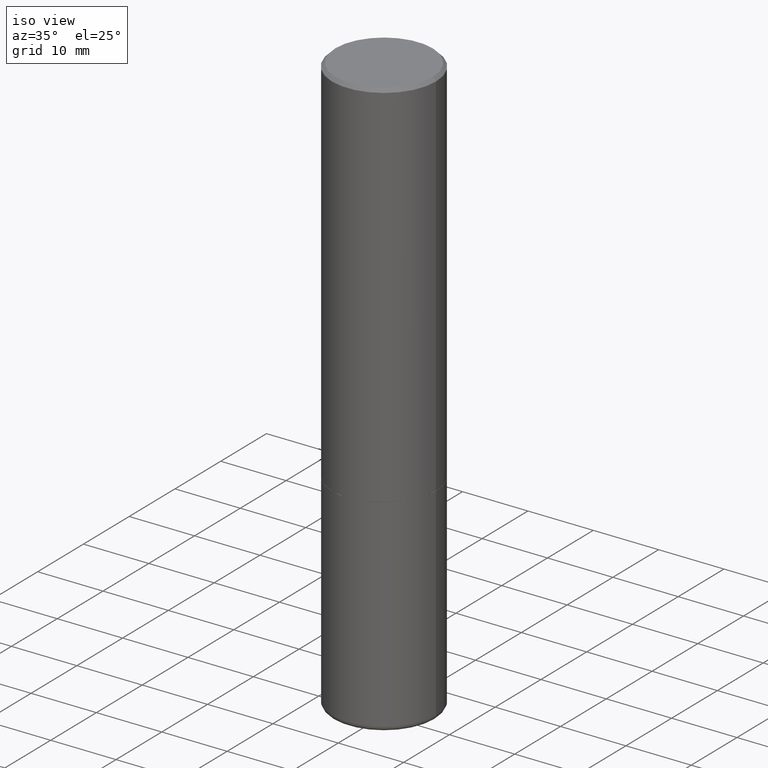
[diagram: clean part render]
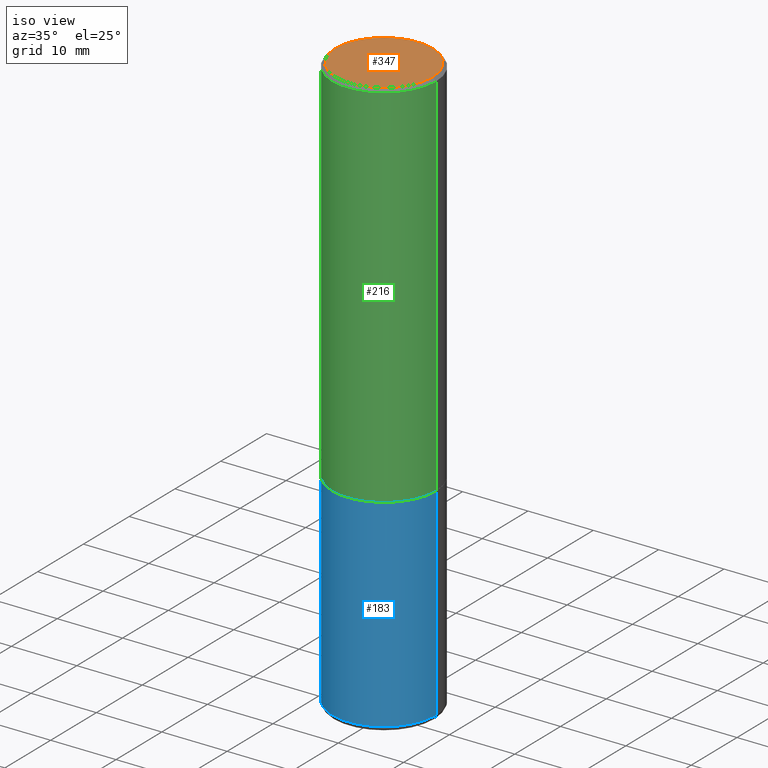
[diagram: same view with three faces highlighted in distinct colors, each labeled with its STEP entity id]
A machine part, iso view with three faces highlighted in distinct colors.
Their STEP definitions:

[orange] entity #347 — the highlighted planar face has unit normal (0, -0, -1).
#3 = EDGE_CURVE ( 'NONE', #324, #387, #235, .T. ) ;
#14 = DIRECTION ( 'NONE',  ( 1.000000000000000000, -6.982962677686266711E-15, 4.876067333457692840E-29 ) ) ;
#19 = DIRECTION ( 'NONE',  ( -2.445468806185136597E-29, 3.491481338843145583E-15, 1.000000000000000000 ) ) ;
#36 = DIRECTION ( 'NONE',  ( -1.000000000000000000, 6.982962677686265922E-15, -4.876176775795935793E-29 ) ) ;
#71 = CARTESIAN_POINT ( 'NONE',  ( 0.2924999999999998157, -2.110215457714318748E-15, 4.268512490114932791E-18 ) ) ;
#114 = EDGE_LOOP ( 'NONE', ( #202, #168 ) ) ;
#120 = CARTESIAN_POINT ( 'NONE',  ( -1.043851414335219820E-46, 1.490343170380447200E-32, 4.268512490100411279E-18 ) ) ;
#168 = ORIENTED_EDGE ( 'NONE', *, *, #3, .T. ) ;
#193 = AXIS2_PLACEMENT_3D ( 'NONE', #332, #19, #300 ) ;
#202 = ORIENTED_EDGE ( 'NONE', *, *, #411, .T. ) ;
#235 = CIRCLE ( 'NONE', #193, 0.2924999999999998157 ) ;
#259 = DIRECTION ( 'NONE',  ( -2.445468806185136597E-29, 3.491481338843145583E-15, 1.000000000000000000 ) ) ;
#270 = AXIS2_PLACEMENT_3D ( 'NONE', #412, #353, #36 ) ;
#292 = PLANE ( 'NONE',  #270 ) ;
#300 = DIRECTION ( 'NONE',  ( 1.000000000000000000, -6.982962677686266711E-15, 4.876067333457692840E-29 ) ) ;
#324 = VERTEX_POINT ( 'NONE', #71 ) ;
#329 = CARTESIAN_POINT ( 'NONE',  ( -0.2924999999999998157, 2.077431396611662611E-15, 4.268512490086005323E-18 ) ) ;
#331 = FACE_OUTER_BOUND ( 'NONE', #114, .T. ) ;
#332 = CARTESIAN_POINT ( 'NONE',  ( -1.043851414335219820E-46, 1.490343170380447200E-32, 4.268512490100411279E-18 ) ) ;
#347 = ADVANCED_FACE ( 'NONE', ( #331 ), #292, .F. ) ;
#353 = DIRECTION ( 'NONE',  ( 2.438088387897960049E-29, -3.491481338843145188E-15, -1.000000000000000000 ) ) ;
#387 = VERTEX_POINT ( 'NONE', #329 ) ;
#396 = CIRCLE ( 'NONE', #401, 0.2924999999999998157 ) ;
#401 = AXIS2_PLACEMENT_3D ( 'NONE', #120, #259, #14 ) ;
#411 = EDGE_CURVE ( 'NONE', #387, #324, #396, .T. ) ;
#412 = CARTESIAN_POINT ( 'NONE',  ( 2.042516583223231356E-15, 0.2924999999999998157, -1.019124035366569212E-15 ) ) ;

[blue] entity #183 — the highlighted cylindrical surface (partial cylindrical patch) has radius 7.9375 mm, axis along (-0, 0, 1).
#23 = DIRECTION ( 'NONE',  ( 1.000000000000000000, -6.982962677686265133E-15, 0.000000000000000000 ) ) ;
#34 = ORIENTED_EDGE ( 'NONE', *, *, #105, .T. ) ;
#38 = DIRECTION ( 'NONE',  ( -2.445468806185136597E-29, 3.491481338843145583E-15, 1.000000000000000000 ) ) ;
#57 = DIRECTION ( 'NONE',  ( 1.000000000000000000, -6.982962677686269077E-15, 0.000000000000000000 ) ) ;
#58 = LINE ( 'NONE', #165, #60 ) ;
#60 = VECTOR ( 'NONE', #128, 39.37007874015748143 ) ;
#61 = VERTEX_POINT ( 'NONE', #132 ) ;
#77 = VERTEX_POINT ( 'NONE', #133 ) ;
#91 = EDGE_CURVE ( 'NONE', #61, #118, #308, .T. ) ;
#105 = EDGE_CURVE ( 'NONE', #189, #77, #357, .T. ) ;
#107 = CARTESIAN_POINT ( 'NONE',  ( -0.3125000000000000000, -7.765262354148530218E-15, -3.470041113957361922 ) ) ;
#111 = AXIS2_PLACEMENT_3D ( 'NONE', #442, #38, #441 ) ;
#118 = VERTEX_POINT ( 'NONE', #437 ) ;
#128 = DIRECTION ( 'NONE',  ( -2.445468806185136877E-29, 3.491481338843145188E-15, 1.000000000000000000 ) ) ;
#132 = CARTESIAN_POINT ( 'NONE',  ( -0.3125000000000000000, -7.765262354148530218E-15, -2.249999999999999556 ) ) ;
#133 = CARTESIAN_POINT ( 'NONE',  ( 0.3125000000000000000, -1.429775963117756807E-14, -3.470041113957361922 ) ) ;
#134 = VECTOR ( 'NONE', #228, 39.37007874015748143 ) ;
#151 = ORIENTED_EDGE ( 'NONE', *, *, #368, .T. ) ;
#162 = AXIS2_PLACEMENT_3D ( 'NONE', #271, #375, #57 ) ;
#164 = FACE_OUTER_BOUND ( 'NONE', #250, .T. ) ;
#165 = CARTESIAN_POINT ( 'NONE',  ( -0.3125000000000000000, 2.220446049250313081E-15, -1.537167215704658232E-29 ) ) ;
#183 = ADVANCED_FACE ( 'NONE', ( #164 ), #302, .T. ) ;
#185 = LINE ( 'NONE', #272, #134 ) ;
#189 = VERTEX_POINT ( 'NONE', #107 ) ;
#206 = AXIS2_PLACEMENT_3D ( 'NONE', #268, #369, #23 ) ;
#212 = ORIENTED_EDGE ( 'NONE', *, *, #397, .F. ) ;
#228 = DIRECTION ( 'NONE',  ( -2.445468806185136877E-29, 3.491481338843145188E-15, 1.000000000000000000 ) ) ;
#250 = EDGE_LOOP ( 'NONE', ( #212, #34, #151, #424 ) ) ;
#268 = CARTESIAN_POINT ( 'NONE',  ( 5.502304813916556222E-29, -7.855833012397075293E-15, -2.249999999999999556 ) ) ;
#271 = CARTESIAN_POINT ( 'NONE',  ( 8.485877300362652309E-29, -1.211558379440060973E-14, -3.470041113957361922 ) ) ;
#272 = CARTESIAN_POINT ( 'NONE',  ( 0.3125000000000000000, -2.182175836776958347E-15, 1.523805242436230075E-29 ) ) ;
#302 = CYLINDRICAL_SURFACE ( 'NONE', #111, 0.3125000000000000000 ) ;
#308 = CIRCLE ( 'NONE', #206, 0.3125000000000000000 ) ;
#357 = CIRCLE ( 'NONE', #162, 0.3125000000000000000 ) ;
#368 = EDGE_CURVE ( 'NONE', #77, #118, #185, .T. ) ;
#369 = DIRECTION ( 'NONE',  ( -2.445468806185136597E-29, 3.491481338843145583E-15, 1.000000000000000000 ) ) ;
#375 = DIRECTION ( 'NONE',  ( -2.445468806185136597E-29, 3.491481338843145583E-15, 1.000000000000000000 ) ) ;
#397 = EDGE_CURVE ( 'NONE', #189, #61, #58, .T. ) ;
#424 = ORIENTED_EDGE ( 'NONE', *, *, #91, .F. ) ;
#437 = CARTESIAN_POINT ( 'NONE',  ( 0.3125000000000000000, -1.003800884917403364E-14, -2.249999999999999556 ) ) ;
#441 = DIRECTION ( 'NONE',  ( 1.000000000000000000, -6.982962677686266711E-15, 4.876176775795936353E-29 ) ) ;
#442 = CARTESIAN_POINT ( 'NONE',  ( 0.000000000000000000, 0.000000000000000000, 0.000000000000000000 ) ) ;

[green] entity #216 — the highlighted cylindrical surface (partial cylindrical patch) has radius 7.9375 mm, axis along (-0, 0, 1).
#2 = ORIENTED_EDGE ( 'NONE', *, *, #403, .T. ) ;
#5 = DIRECTION ( 'NONE',  ( 1.000000000000000000, -6.982962677686266711E-15, 0.000000000000000000 ) ) ;
#10 = AXIS2_PLACEMENT_3D ( 'NONE', #244, #210, #5 ) ;
#44 = DIRECTION ( 'NONE',  ( -2.445468806185136877E-29, 3.491481338843145188E-15, 1.000000000000000000 ) ) ;
#46 = ORIENTED_EDGE ( 'NONE', *, *, #187, .F. ) ;
#52 = AXIS2_PLACEMENT_3D ( 'NONE', #402, #196, #338 ) ;
#54 = VECTOR ( 'NONE', #44, 39.37007874015748143 ) ;
#79 = VERTEX_POINT ( 'NONE', #344 ) ;
#85 = CARTESIAN_POINT ( 'NONE',  ( 0.3124999999999998890, -2.182175836776957558E-15, 1.523805242436229235E-29 ) ) ;
#100 = DIRECTION ( 'NONE',  ( -2.445468806185136597E-29, 3.491481338843145583E-15, 1.000000000000000000 ) ) ;
#101 = AXIS2_PLACEMENT_3D ( 'NONE', #248, #100, #181 ) ;
#160 = EDGE_CURVE ( 'NONE', #330, #79, #213, .T. ) ;
#171 = CIRCLE ( 'NONE', #10, 0.3124999999999998335 ) ;
#181 = DIRECTION ( 'NONE',  ( 1.000000000000000000, -6.982962677686266711E-15, 4.876176775795935232E-29 ) ) ;
#187 = EDGE_CURVE ( 'NONE', #392, #417, #171, .T. ) ;
#190 = CARTESIAN_POINT ( 'NONE',  ( -0.3125000000000000000, -1.740639529667232739E-15, -2.248999999999999222 ) ) ;
#196 = DIRECTION ( 'NONE',  ( -2.445468806185136597E-29, 3.491481338843145583E-15, 1.000000000000000000 ) ) ;
#210 = DIRECTION ( 'NONE',  ( -2.445468806185136597E-29, 3.491481338843145583E-15, 1.000000000000000000 ) ) ;
#213 = CIRCLE ( 'NONE', #52, 0.3125000000000000000 ) ;
#216 = ADVANCED_FACE ( 'NONE', ( #276 ), #355, .T. ) ;
#217 = LINE ( 'NONE', #335, #54 ) ;
#244 = CARTESIAN_POINT ( 'NONE',  ( 4.890937612370276662E-31, -6.982962677686296539E-17, -0.02000000000000001776 ) ) ;
#245 = LINE ( 'NONE', #85, #340 ) ;
#248 = CARTESIAN_POINT ( 'NONE',  ( 0.000000000000000000, 0.000000000000000000, 0.000000000000000000 ) ) ;
#253 = EDGE_LOOP ( 'NONE', ( #291, #398, #2, #46 ) ) ;
#255 = DIRECTION ( 'NONE',  ( -2.445468806185136877E-29, 3.491481338843145188E-15, 1.000000000000000000 ) ) ;
#276 = FACE_OUTER_BOUND ( 'NONE', #253, .T. ) ;
#291 = ORIENTED_EDGE ( 'NONE', *, *, #408, .F. ) ;
#299 = CARTESIAN_POINT ( 'NONE',  ( 0.3124999999999998335, -2.213735251080465334E-15, -0.02000000000000001776 ) ) ;
#330 = VERTEX_POINT ( 'NONE', #190 ) ;
#335 = CARTESIAN_POINT ( 'NONE',  ( -0.3124999999999998890, 2.220446049250312292E-15, -1.537167215704657391E-29 ) ) ;
#338 = DIRECTION ( 'NONE',  ( 1.000000000000000000, -6.982962677686269077E-15, 0.000000000000000000 ) ) ;
#340 = VECTOR ( 'NONE', #255, 39.37007874015748143 ) ;
#344 = CARTESIAN_POINT ( 'NONE',  ( 0.3125000000000000000, -1.003451736783519063E-14, -2.248999999999999222 ) ) ;
#346 = CARTESIAN_POINT ( 'NONE',  ( -0.3124999999999998335, 2.112346210000093866E-15, -0.02000000000000001776 ) ) ;
#355 = CYLINDRICAL_SURFACE ( 'NONE', #101, 0.3124999999999998890 ) ;
#392 = VERTEX_POINT ( 'NONE', #346 ) ;
#398 = ORIENTED_EDGE ( 'NONE', *, *, #160, .T. ) ;
#402 = CARTESIAN_POINT ( 'NONE',  ( 5.499859345110370619E-29, -7.852341531058232286E-15, -2.248999999999999222 ) ) ;
#403 = EDGE_CURVE ( 'NONE', #79, #417, #245, .T. ) ;
#408 = EDGE_CURVE ( 'NONE', #330, #392, #217, .T. ) ;
#417 = VERTEX_POINT ( 'NONE', #299 ) ;